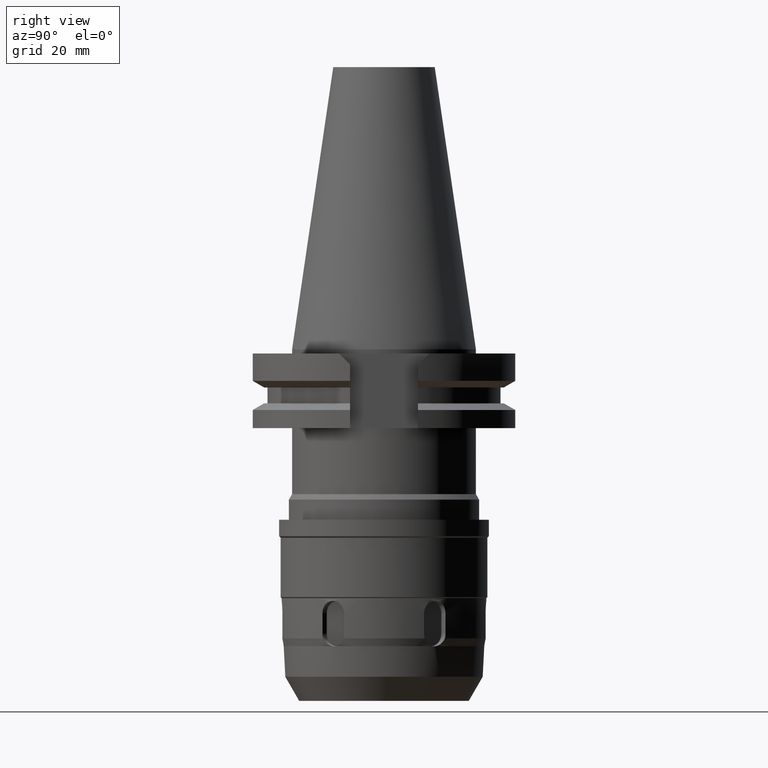
[diagram: clean part render]
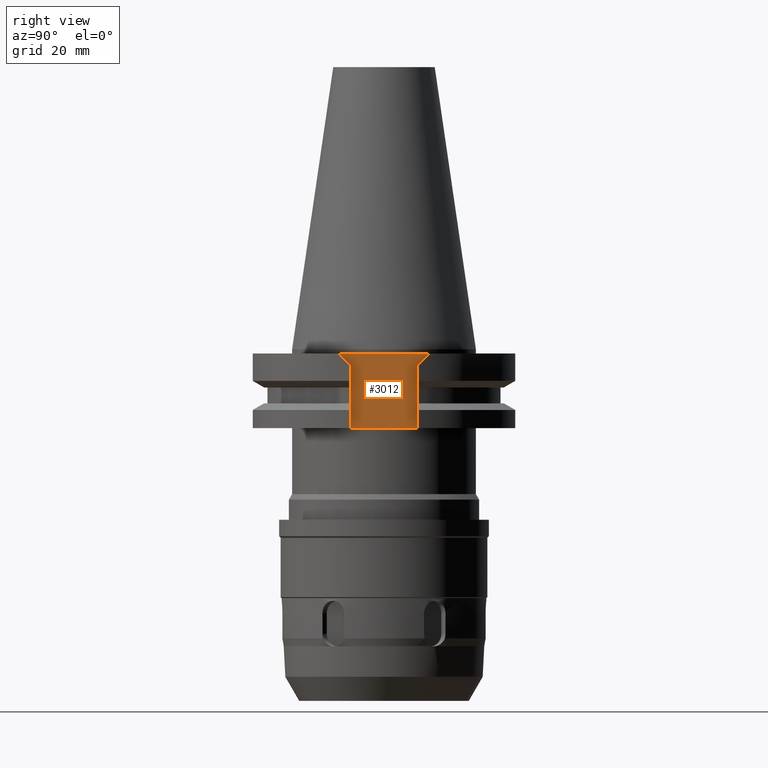
[diagram: same view with one face highlighted and labeled with its STEP entity id]
A machine part, right view. The second image highlights one B-rep face of the part: STEP entity #3012.
In plain terms, the highlighted planar face has unit normal (1, 0, 0).
Its self-contained STEP definition (entity closure, byte-faithful):
#94=DIRECTION('',(0.E0,-1.E0,0.E0));
#95=VECTOR('',#94,2.178E1);
#96=CARTESIAN_POINT('',(2.257E1,1.089E1,-9.999999999997E-1));
#97=LINE('',#96,#95);
#163=DIRECTION('',(0.E0,-1.E0,0.E0));
#164=VECTOR('',#163,1.638E1);
#165=CARTESIAN_POINT('',(2.257E1,8.19E0,-1.905E1));
#166=LINE('',#165,#164);
#170=DIRECTION('',(0.E0,0.E0,1.E0));
#171=VECTOR('',#170,1.535E1);
#172=CARTESIAN_POINT('',(2.257E1,-8.19E0,-1.905E1));
#173=LINE('',#172,#171);
#177=DIRECTION('',(0.E0,-7.071067811865E-1,7.071067811866E-1));
#178=VECTOR('',#177,3.818376618408E0);
#179=CARTESIAN_POINT('',(2.257E1,-8.19E0,-3.7E0));
#180=LINE('',#179,#178);
#184=DIRECTION('',(0.E0,-7.071067811865E-1,-7.071067811866E-1));
#185=VECTOR('',#184,3.818376618408E0);
#186=CARTESIAN_POINT('',(2.257E1,1.089E1,-9.999999999997E-1));
#187=LINE('',#186,#185);
#191=DIRECTION('',(0.E0,0.E0,-1.E0));
#192=VECTOR('',#191,1.535E1);
#193=CARTESIAN_POINT('',(2.257E1,8.19E0,-3.7E0));
#194=LINE('',#193,#192);
#2718=CARTESIAN_POINT('',(2.257E1,8.19E0,-1.905E1));
#2719=CARTESIAN_POINT('',(2.257E1,-8.19E0,-1.905E1));
#2720=VERTEX_POINT('',#2718);
#2721=VERTEX_POINT('',#2719);
#2738=CARTESIAN_POINT('',(2.257E1,-8.19E0,-3.7E0));
#2739=VERTEX_POINT('',#2738);
#2740=CARTESIAN_POINT('',(2.257E1,-1.089E1,-9.999999999997E-1));
#2741=VERTEX_POINT('',#2740);
#2742=CARTESIAN_POINT('',(2.257E1,1.089E1,-9.999999999997E-1));
#2743=VERTEX_POINT('',#2742);
#2744=CARTESIAN_POINT('',(2.257E1,8.19E0,-3.7E0));
#2745=VERTEX_POINT('',#2744);
#2994=CARTESIAN_POINT('',(2.257E1,0.E0,0.E0));
#2995=DIRECTION('',(1.E0,0.E0,0.E0));
#2996=DIRECTION('',(0.E0,0.E0,-1.E0));
#2997=AXIS2_PLACEMENT_3D('',#2994,#2995,#2996);
#2998=PLANE('',#2997);
#3000=ORIENTED_EDGE('',*,*,#2999,.T.);
#3002=ORIENTED_EDGE('',*,*,#3001,.T.);
#3004=ORIENTED_EDGE('',*,*,#3003,.T.);
#3005=ORIENTED_EDGE('',*,*,#2967,.F.);
#3007=ORIENTED_EDGE('',*,*,#3006,.T.);
#3009=ORIENTED_EDGE('',*,*,#3008,.T.);
#3010=EDGE_LOOP('',(#3000,#3002,#3004,#3005,#3007,#3009));
#3011=FACE_OUTER_BOUND('',#3010,.F.);
#2967=EDGE_CURVE('',#2743,#2741,#97,.T.);
#2999=EDGE_CURVE('',#2720,#2721,#166,.T.);
#3001=EDGE_CURVE('',#2721,#2739,#173,.T.);
#3003=EDGE_CURVE('',#2739,#2741,#180,.T.);
#3006=EDGE_CURVE('',#2743,#2745,#187,.T.);
#3008=EDGE_CURVE('',#2745,#2720,#194,.T.);
#3012=ADVANCED_FACE('',(#3011),#2998,.T.);